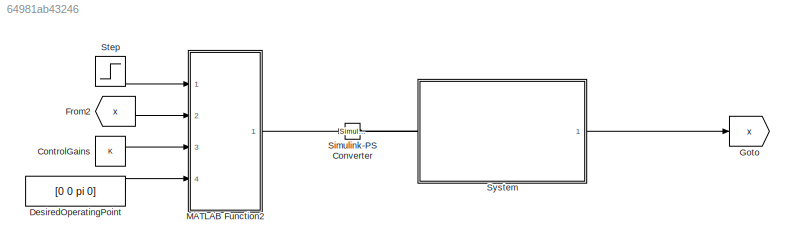
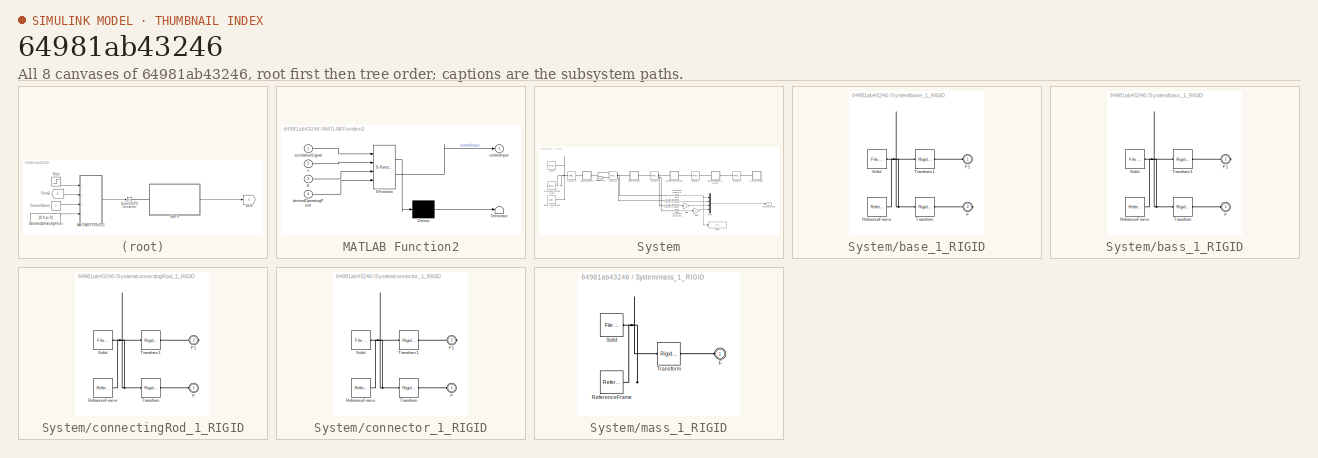
[diagram: thumbnail index - all 8 canvases of the model, root first then tree order]
MODEL slx_64981ab43246
KIND model
CONFIG AbsTol = auto
CONFIG EnableMultiTasking = off
CONFIG FixedStep = auto
CONFIG MaxStep = auto
CONFIG MinStep = auto
CONFIG PostLoadFcn = pendulumAssembly_DataFile1.m\nScript_SlidingPendulum.m
CONFIG RelTol = 1e-3
CONFIG SampleTimeConstraint = Unconstrained
CONFIG SolverName = VariableStepAuto
CONFIG StartTime = 0.0
CONFIG StopTime = 15
WORKSPACE source: external: MATLAB File  (data not in archive)
BLOCK [Constant] ControlGains
  NameLocation = left
  Value = K
BLOCK [Constant] DesiredOperatingPoint
  Value = [0 0 pi 0]
BLOCK [From] From2
  GotoTag = x
BLOCK [Goto] Goto
  GotoTag = x
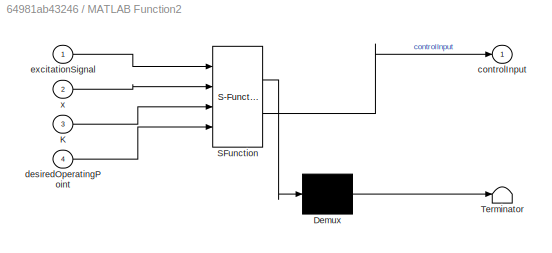
BLOCK [SubSystem] MATLAB Function2
  ErrorFcn = Stateflow.Translate.translate
  PermitHierarchicalResolution = ExplicitOnly
  Ports = [4, 1]
  RequestExecContextInheritance = off
  SFBlockType = MATLAB Function
  TreatAsAtomicUnit = on
BLOCK [Demux] MATLAB Function2/ Demux 
  Outputs = 1
  Ports = [1, 1]
BLOCK [S-Function] MATLAB Function2/ SFunction 
  EnableBusSupport = on
  FunctionName = sf_sfun
  PortCounts = [4 2]
  Ports = [4, 2]
  SFcnIsStateOwnerBlock = off
  SFunctionDeploymentMode = off
  Tag = Stateflow S-Function 4
BLOCK [Terminator] MATLAB Function2/ Terminator 
BLOCK [Inport] MATLAB Function2/K
  Port = 3
BLOCK [Outport] MATLAB Function2/controlInput
BLOCK [Inport] MATLAB Function2/desiredOperatingPoint
  Port = 4
BLOCK [Inport] MATLAB Function2/excitationSignal
BLOCK [Inport] MATLAB Function2/x
  Port = 2
BLOCK [Reference] Simulink-PS Converter  REF=nesl_utility/Simulink-PS
Converter
  Ports = [1, 0, 0, 0, 0, 0, 1]
  SourceBlock = nesl_utility/Simulink-PS\nConverter
  SourceProductBaseCode = PW,SS
  SourceType = Simulink-PS\nConverter
BLOCK [Step] Step
  After = -4.5
  Before = 6
  SampleTime = 0
  Time = .13
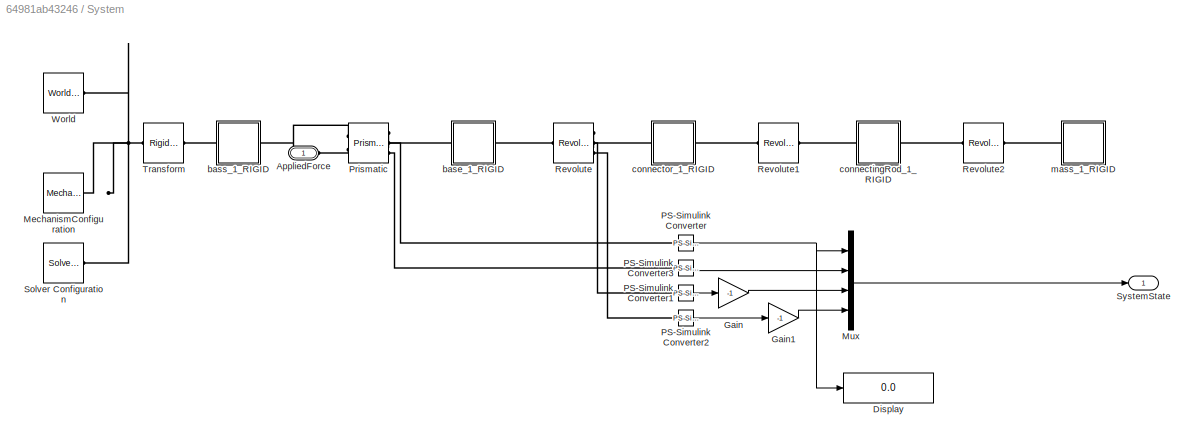
BLOCK [SubSystem] System
  Ports = [0, 1, 0, 0, 0, 1]
  RequestExecContextInheritance = off
BLOCK [PMIOPort] System/AppliedForce
  Side = Left
BLOCK [Display] System/Display
  Decimation = 1
  Ports = [1]
BLOCK [Gain] System/Gain
  Gain = -1
BLOCK [Gain] System/Gain1
  Gain = -1
BLOCK [Reference] System/MechanismConfiguration  REF=sm_lib/Utilities/Mechanism
Configuration
  Ports = [0, 0, 0, 0, 0, 0, 1]
  SourceBlock = sm_lib/Utilities/Mechanism\nConfiguration
  SourceProductBaseCode = MS
  SourceType = Mechanism\nConfiguration
BLOCK [Mux] System/Mux
  DisplayOption = bar
  Ports = [4, 1]
BLOCK [Reference] System/PS-Simulink Converter  REF=nesl_utility/PS-Simulink
Converter
  Ports = [0, 1, 0, 0, 0, 1]
  SourceBlock = nesl_utility/PS-Simulink\nConverter
  SourceProductBaseCode = PW,SS
  SourceType = PS-Simulink\nConverter
BLOCK [Reference] System/PS-Simulink Converter1  REF=nesl_utility/PS-Simulink
Converter
  Ports = [0, 1, 0, 0, 0, 1]
  SourceBlock = nesl_utility/PS-Simulink\nConverter
  SourceProductBaseCode = PW,SS
  SourceType = PS-Simulink\nConverter
BLOCK [Reference] System/PS-Simulink Converter2  REF=nesl_utility/PS-Simulink
Converter
  Ports = [0, 1, 0, 0, 0, 1]
  SourceBlock = nesl_utility/PS-Simulink\nConverter
  SourceProductBaseCode = PW,SS
  SourceType = PS-Simulink\nConverter
BLOCK [Reference] System/PS-Simulink Converter3  REF=nesl_utility/PS-Simulink
Converter
  Ports = [0, 1, 0, 0, 0, 1]
  SourceBlock = nesl_utility/PS-Simulink\nConverter
  SourceProductBaseCode = PW,SS
  SourceType = PS-Simulink\nConverter
BLOCK [Reference] System/Prismatic  REF=sm_lib/Joints/Prismatic
Joint
  Ports = [0, 0, 0, 0, 0, 2, 3]
  SourceBlock = sm_lib/Joints/Prismatic\nJoint
  SourceProductBaseCode = MS
  SourceType = Prismatic\nJoint
BLOCK [Reference] System/Revolute  REF=sm_lib/Joints/Revolute Joint
  Ports = [0, 0, 0, 0, 0, 1, 3]
  SourceBlock = sm_lib/Joints/Revolute Joint
  SourceProductBaseCode = MS
  SourceType = Revolute Joint
BLOCK [Reference] System/Revolute1  REF=sm_lib/Joints/Revolute Joint
  Ports = [0, 0, 0, 0, 0, 1, 1]
  SourceBlock = sm_lib/Joints/Revolute Joint
  SourceProductBaseCode = MS
  SourceType = Revolute Joint
BLOCK [Reference] System/Revolute2  REF=sm_lib/Joints/Revolute Joint
  Ports = [0, 0, 0, 0, 0, 1, 1]
  SourceBlock = sm_lib/Joints/Revolute Joint
  SourceProductBaseCode = MS
  SourceType = Revolute Joint
BLOCK [Reference] System/Solver Configuration  REF=nesl_utility/Solver
Configuration
  Ports = [0, 0, 0, 0, 0, 0, 1]
  SourceBlock = nesl_utility/Solver\nConfiguration
  SourceProductBaseCode = PW,SS
  SourceType = Solver\nConfiguration
BLOCK [Outport] System/SystemState
  VectorParamsAs1DForOutWhenUnconnected = off
BLOCK [Reference] System/Transform  REF=sm_lib/Frames and
Transforms/Rigid
Transform
  Ports = [0, 0, 0, 0, 0, 1, 1]
  SourceBlock = sm_lib/Frames and\nTransforms/Rigid\nTransform
  SourceProductBaseCode = MS
  SourceType = Rigid\nTransform
BLOCK [Reference] System/World  REF=sm_lib/Frames and
Transforms/World Frame
  Ports = [0, 0, 0, 0, 0, 0, 1]
  SourceBlock = sm_lib/Frames and\nTransforms/World Frame
  SourceProductBaseCode = MS
  SourceType = World Frame
BLOCK [SubSystem] System/base_1_RIGID
  Ports = [0, 0, 0, 0, 0, 1, 1]
  RequestExecContextInheritance = off
BLOCK [PMIOPort] System/base_1_RIGID/F
  Port = 2
  Side = Right
BLOCK [PMIOPort] System/base_1_RIGID/F1
  Side = Left
BLOCK [Reference] System/base_1_RIGID/ReferenceFrame  REF=sm_lib/Frames and
Transforms/Reference
Frame
  Ports = [0, 0, 0, 0, 0, 0, 1]
  SourceBlock = sm_lib/Frames and\nTransforms/Reference\nFrame
  SourceProductBaseCode = MS
  SourceType = Reference\nFrame
BLOCK [Reference] System/base_1_RIGID/Solid  REF=sm_lib/Body Elements/File Solid
  Ports = [0, 0, 0, 0, 0, 0, 1]
  SourceBlock = sm_lib/Body Elements/File Solid
  SourceProductBaseCode = MS
  SourceType = File Solid
BLOCK [Reference] System/base_1_RIGID/Transform  REF=sm_lib/Frames and
Transforms/Rigid
Transform
  Ports = [0, 0, 0, 0, 0, 1, 1]
  SourceBlock = sm_lib/Frames and\nTransforms/Rigid\nTransform
  SourceProductBaseCode = MS
  SourceType = Rigid\nTransform
BLOCK [Reference] System/base_1_RIGID/Transform1  REF=sm_lib/Frames and
Transforms/Rigid
Transform
  Ports = [0, 0, 0, 0, 0, 1, 1]
  SourceBlock = sm_lib/Frames and\nTransforms/Rigid\nTransform
  SourceProductBaseCode = MS
  SourceType = Rigid\nTransform
BLOCK [SubSystem] System/bass_1_RIGID
  Ports = [0, 0, 0, 0, 0, 1, 1]
  RequestExecContextInheritance = off
BLOCK [PMIOPort] System/bass_1_RIGID/F
  Side = Left
BLOCK [PMIOPort] System/bass_1_RIGID/F1
  Port = 2
  Side = Right
BLOCK [Reference] System/bass_1_RIGID/ReferenceFrame  REF=sm_lib/Frames and
Transforms/Reference
Frame
  Ports = [0, 0, 0, 0, 0, 0, 1]
  SourceBlock = sm_lib/Frames and\nTransforms/Reference\nFrame
  SourceProductBaseCode = MS
  SourceType = Reference\nFrame
BLOCK [Reference] System/bass_1_RIGID/Solid  REF=sm_lib/Body Elements/File Solid
  Ports = [0, 0, 0, 0, 0, 0, 1]
  SourceBlock = sm_lib/Body Elements/File Solid
  SourceProductBaseCode = MS
  SourceType = File Solid
BLOCK [Reference] System/bass_1_RIGID/Transform  REF=sm_lib/Frames and
Transforms/Rigid
Transform
  Ports = [0, 0, 0, 0, 0, 1, 1]
  SourceBlock = sm_lib/Frames and\nTransforms/Rigid\nTransform
  SourceProductBaseCode = MS
  SourceType = Rigid\nTransform
BLOCK [Reference] System/bass_1_RIGID/Transform1  REF=sm_lib/Frames and
Transforms/Rigid
Transform
  Ports = [0, 0, 0, 0, 0, 1, 1]
  SourceBlock = sm_lib/Frames and\nTransforms/Rigid\nTransform
  SourceProductBaseCode = MS
  SourceType = Rigid\nTransform
BLOCK [SubSystem] System/connectingRod_1_RIGID
  Ports = [0, 0, 0, 0, 0, 1, 1]
  RequestExecContextInheritance = off
BLOCK [PMIOPort] System/connectingRod_1_RIGID/F
  Side = Left
BLOCK [PMIOPort] System/connectingRod_1_RIGID/F1
  Port = 2
  Side = Right
BLOCK [Reference] System/connectingRod_1_RIGID/ReferenceFrame  REF=sm_lib/Frames and
Transforms/Reference
Frame
  Ports = [0, 0, 0, 0, 0, 0, 1]
  SourceBlock = sm_lib/Frames and\nTransforms/Reference\nFrame
  SourceProductBaseCode = MS
  SourceType = Reference\nFrame
BLOCK [Reference] System/connectingRod_1_RIGID/Solid  REF=sm_lib/Body Elements/File Solid
  Ports = [0, 0, 0, 0, 0, 0, 1]
  SourceBlock = sm_lib/Body Elements/File Solid
  SourceProductBaseCode = MS
  SourceType = File Solid
BLOCK [Reference] System/connectingRod_1_RIGID/Transform  REF=sm_lib/Frames and
Transforms/Rigid
Transform
  Ports = [0, 0, 0, 0, 0, 1, 1]
  SourceBlock = sm_lib/Frames and\nTransforms/Rigid\nTransform
  SourceProductBaseCode = MS
  SourceType = Rigid\nTransform
BLOCK [Reference] System/connectingRod_1_RIGID/Transform1  REF=sm_lib/Frames and
Transforms/Rigid
Transform
  Ports = [0, 0, 0, 0, 0, 1, 1]
  SourceBlock = sm_lib/Frames and\nTransforms/Rigid\nTransform
  SourceProductBaseCode = MS
  SourceType = Rigid\nTransform
BLOCK [SubSystem] System/connector_1_RIGID
  Ports = [0, 0, 0, 0, 0, 1, 1]
  RequestExecContextInheritance = off
BLOCK [PMIOPort] System/connector_1_RIGID/F
  Side = Left
BLOCK [PMIOPort] System/connector_1_RIGID/F1
  Port = 2
  Side = Right
BLOCK [Reference] System/connector_1_RIGID/ReferenceFrame  REF=sm_lib/Frames and
Transforms/Reference
Frame
  Ports = [0, 0, 0, 0, 0, 0, 1]
  SourceBlock = sm_lib/Frames and\nTransforms/Reference\nFrame
  SourceProductBaseCode = MS
  SourceType = Reference\nFrame
BLOCK [Reference] System/connector_1_RIGID/Solid  REF=sm_lib/Body Elements/File Solid
  Ports = [0, 0, 0, 0, 0, 0, 1]
  SourceBlock = sm_lib/Body Elements/File Solid
  SourceProductBaseCode = MS
  SourceType = File Solid
BLOCK [Reference] System/connector_1_RIGID/Transform  REF=sm_lib/Frames and
Transforms/Rigid
Transform
  Ports = [0, 0, 0, 0, 0, 1, 1]
  SourceBlock = sm_lib/Frames and\nTransforms/Rigid\nTransform
  SourceProductBaseCode = MS
  SourceType = Rigid\nTransform
BLOCK [Reference] System/connector_1_RIGID/Transform1  REF=sm_lib/Frames and
Transforms/Rigid
Transform
  Ports = [0, 0, 0, 0, 0, 1, 1]
  SourceBlock = sm_lib/Frames and\nTransforms/Rigid\nTransform
  SourceProductBaseCode = MS
  SourceType = Rigid\nTransform
BLOCK [SubSystem] System/mass_1_RIGID
  Ports = [0, 0, 0, 0, 0, 1]
  RequestExecContextInheritance = off
BLOCK [PMIOPort] System/mass_1_RIGID/F
  Side = Left
BLOCK [Reference] System/mass_1_RIGID/ReferenceFrame  REF=sm_lib/Frames and
Transforms/Reference
Frame
  Ports = [0, 0, 0, 0, 0, 0, 1]
  SourceBlock = sm_lib/Frames and\nTransforms/Reference\nFrame
  SourceProductBaseCode = MS
  SourceType = Reference\nFrame
BLOCK [Reference] System/mass_1_RIGID/Solid  REF=sm_lib/Body Elements/File Solid
  Ports = [0, 0, 0, 0, 0, 0, 1]
  SourceBlock = sm_lib/Body Elements/File Solid
  SourceProductBaseCode = MS
  SourceType = File Solid
BLOCK [Reference] System/mass_1_RIGID/Transform  REF=sm_lib/Frames and
Transforms/Rigid
Transform
  Ports = [0, 0, 0, 0, 0, 1, 1]
  SourceBlock = sm_lib/Frames and\nTransforms/Rigid\nTransform
  SourceProductBaseCode = MS
  SourceType = Rigid\nTransform
LINE ControlGains:1 -> MATLAB Function2:3
LINE DesiredOperatingPoint:1 -> MATLAB Function2:4
LINE From2:1 -> MATLAB Function2:2
LINE MATLAB Function2:1 -> Simulink-PS Converter:1
LINE Step:1 -> MATLAB Function2:1
LINE System/Gain1:1 -> System/Mux:4
LINE System/Gain:1 -> System/Mux:3
LINE System/Mux:1 -> System/SystemState:1
LINE System/PS-Simulink Converter1:1 -> System/Gain:1
LINE System/PS-Simulink Converter2:1 -> System/Gain1:1
LINE System/PS-Simulink Converter3:1 -> System/Mux:2
NET System/PS-Simulink Converter:1 -> System/Display:1, System/Mux:1
LINE System:1 -> Goto:1
PLINE Simulink-PS Converter:RConn1 -- System:LConn1
PLINE System/AppliedForce:RConn1 -- System/Prismatic:LConn2
PNET net1: System/MechanismConfiguration:RConn1 -- System/Solver Configuration:RConn1 -- System/Transform:LConn1 -- System/World:RConn1
PLINE System/PS-Simulink Converter1:LConn1 -- System/Revolute:RConn2
PLINE System/PS-Simulink Converter2:LConn1 -- System/Revolute:RConn3
PLINE System/PS-Simulink Converter3:LConn1 -- System/Prismatic:RConn3
PLINE System/PS-Simulink Converter:LConn1 -- System/Prismatic:RConn2
PLINE System/Prismatic:LConn1 -- System/bass_1_RIGID:RConn1
PLINE System/Prismatic:RConn1 -- System/base_1_RIGID:LConn1
PLINE System/Revolute1:LConn1 -- System/connector_1_RIGID:RConn1
PLINE System/Revolute1:RConn1 -- System/connectingRod_1_RIGID:LConn1
PLINE System/Revolute2:LConn1 -- System/connectingRod_1_RIGID:RConn1
PLINE System/Revolute2:RConn1 -- System/mass_1_RIGID:LConn1
PLINE System/Revolute:LConn1 -- System/base_1_RIGID:RConn1
PLINE System/Revolute:RConn1 -- System/connector_1_RIGID:LConn1
PLINE System/Transform:RConn1 -- System/bass_1_RIGID:LConn1
PLINE System/base_1_RIGID/F1:RConn1 -- System/base_1_RIGID/Transform1:RConn1
PLINE System/base_1_RIGID/F:RConn1 -- System/base_1_RIGID/Transform:RConn1
PNET net2: System/base_1_RIGID/ReferenceFrame:RConn1 -- System/base_1_RIGID/Solid:RConn1 -- System/base_1_RIGID/Transform1:LConn1 -- System/base_1_RIGID/Transform:LConn1
PLINE System/bass_1_RIGID/F1:RConn1 -- System/bass_1_RIGID/Transform1:RConn1
PLINE System/bass_1_RIGID/F:RConn1 -- System/bass_1_RIGID/Transform:RConn1
PNET net3: System/bass_1_RIGID/ReferenceFrame:RConn1 -- System/bass_1_RIGID/Solid:RConn1 -- System/bass_1_RIGID/Transform1:LConn1 -- System/bass_1_RIGID/Transform:LConn1
PLINE System/connectingRod_1_RIGID/F1:RConn1 -- System/connectingRod_1_RIGID/Transform1:RConn1
PLINE System/connectingRod_1_RIGID/F:RConn1 -- System/connectingRod_1_RIGID/Transform:RConn1
PNET net4: System/connectingRod_1_RIGID/ReferenceFrame:RConn1 -- System/connectingRod_1_RIGID/Solid:RConn1 -- System/connectingRod_1_RIGID/Transform1:LConn1 -- System/connectingRod_1_RIGID/Transform:LConn1
PLINE System/connector_1_RIGID/F1:RConn1 -- System/connector_1_RIGID/Transform1:RConn1
PLINE System/connector_1_RIGID/F:RConn1 -- System/connector_1_RIGID/Transform:RConn1
PNET net5: System/connector_1_RIGID/ReferenceFrame:RConn1 -- System/connector_1_RIGID/Solid:RConn1 -- System/connector_1_RIGID/Transform1:LConn1 -- System/connector_1_RIGID/Transform:LConn1
PLINE System/mass_1_RIGID/F:RConn1 -- System/mass_1_RIGID/Transform:RConn1
PNET net6: System/mass_1_RIGID/ReferenceFrame:RConn1 -- System/mass_1_RIGID/Solid:RConn1 -- System/mass_1_RIGID/Transform:LConn1
note: NET lines group one-source signal fan-out (src -> all destinations, sorted); 1:1 wires keep LINE; PNET lines group multi-terminal physical nets as a canonical sorted terminal list (undirected conserving connections); 2-terminal nets keep the pairwise PLINE form
CHART MATLAB Function2 states=1 transitions=1
  STATE_LABEL 'eML_blk_kernel()'
  STATE_LABEL "SCRIPT:\nfunction controlInput = fcn(excitationSignal,x,K, desiredOperatingPoint)\n\nrelativeX=x-desiredOperatingPoint;\n\n%Determine if the pendulum is upright\nif mod(abs(relativeX(3)),2*pi)>pi/6\n    controlInput=excitationSignal;\nelse\n    controlInput=relativeX'*-K(1:4)*0.5;\nend\n\n\n"
CHART  states=0 transitions=0
